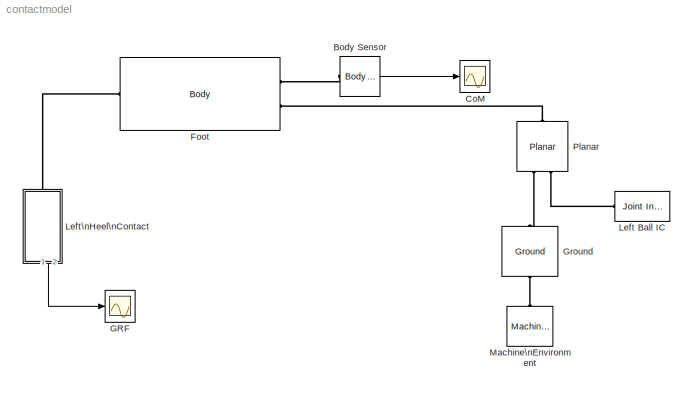
MODEL contactmodel
KIND model
BLOCK [Reference] Body Sensor  REF=mblibv1/Sensors & \nActuators/Body Sensor
  Acceleration = off
  AccelerationUnits = m/s^2
  ActiveIO = on
  Angle = on
  AngleUnits = deg
  ArcAcceleration = off
  ArcAccelerationUnits = deg/s^2
  ArcVelocity = off
  ArcVelocityUnits = deg/s
  ClassName = BodySensor
  CoordPosition = on
  CoordPositionUnits = m
  DialogClass = MechanicalSensorBlock
  Muxed = on
  OutputVector = [1]
  PhysicalDomain = Mechanical
  PortType = blob
  Ports = [0, 1, 0, 0, 0, 1]
  Pose = off
  Quaternion = on
  QuaternionDDT = off
  QuaternionDT = off
  QuaternionUnits = off
  ReferenceFrame = Absolute (World)
  SID = 96
  SourceBlock = mblibv1/Sensors & \nActuators/Body Sensor
  SourceType = Body Sensor
  UpdateFromCAD = off
  Velocity = off
  VelocityUnits = m/s
  Width = 3
BLOCK [Scope] CoM
  Floating = off
  NumInputPorts = 1
  Ports = [1]
  SID = 97
  SaveName = ScopeData1
  ShowLegends = off
BLOCK [Reference] Foot  REF=mblibv1/Bodies/Body
  AttachedToCS = CG
  BodyColor = [1 0 0]
  BodyColorSelMode = MACHINE_DEFAULT
  CG = Left$CG$[0 0 0]$CS1$CS1$m$[0 0 0]$Euler X-Y-Z$deg$WORLD$true$none
  CGPos = [0 0 0]
  CGRot = [0 0 0]
  CS0Pos = []
  CS0Rot = []
  CS10Pos = []
  CS10Rot = []
  CS11Pos = []
  CS11Rot = []
  CS12Pos = []
  CS12Rot = []
  CS13Pos = []
  CS13Rot = []
  CS14Pos = []
  CS14Rot = []
  CS15Pos = []
  CS15Rot = []
  CS16Pos = []
  CS16Rot = []
  CS17Pos = []
  CS17Rot = []
  CS18Pos = []
  CS18Rot = []
  CS19Pos = []
  CS19Rot = []
  CS1Pos = [0 0 0]
  CS1Rot = [0 0 0]
  CS20Pos = []
  CS20Rot = []
  CS2Pos = [0 0 0]
  CS2Rot = [0 0 0]
  CS3Pos = []
  CS3Rot = []
  CS4Pos = []
  CS4Rot = []
  CS5Pos = []
  CS5Rot = []
  CS6Pos = []
  CS6Rot = []
  CS7Pos = []
  CS7Rot = []
  CS8Pos = []
  CS8Rot = []
  CS9Pos = []
  CS9Rot = []
  ClassName = Body
  Density = 1
  DensityUnits = kg/m^3
  DensityUse = false
  DialogClass = MechanicalBodyBlock
  GraphicsMode = MACHINE_DEFAULT
  Inertia = [0 0 0; 0 0 0; 0 0 1]
  InertiaUnits = kg*m^2
  LConnTagsString = CG|CS1
  Mass = 1
  MassUnits = kg
  Ports = [0, 0, 0, 0, 0, 2, 1]
  RConnTagsString = CS2
  SID = 92
  Shape = Cylinder
  ShapeDims = [1 1]
  ShapeUnits = m
  ShapeUse = false
  SourceBlock = mblibv1/Bodies/Body
  SourceType = Body
  UpdateFromCAD = off
  WorkingFrames = Left$CS1$[0 0 0]$ADJOINING$ADJOINING$m$[0 0 0]$Euler X-Y-Z$deg$WORLD$true$none#Right$CS2$[0 0 0]$CS1$CS1$m$[0 0 0]$Euler X-Y-Z$deg$WORLD$true$none
BLOCK [Scope] GRF
  Floating = off
  NumInputPorts = 1
  Ports = [1]
  SID = 95
  ShowLegends = off
  ZoomMode = yonly
BLOCK [Reference] Ground  REF=mblibv1/Bodies/Ground
  ClassName = Ground
  CoordPosition = [0 0 0]
  CoordPositionUnits = m
  DialogClass = GroundBlock
  LeftPortType = env
  MachineId = [1 0]
  ParameterChecksum = [171950116, 4110428380, 191382114, 3598789503]
  PhysicalDomain = Mechanical
  Ports = [0, 0, 0, 0, 0, 1, 1]
  RightPortType = workingframe
  SID = 1
  ShowEnvPort = on
  SourceBlock = mblibv1/Bodies/Ground
  SourceType = Ground
  StateVectorMgrId = 0
  TopologyChecksum = [3411928972, 2060642309, 880269519, 1718383124]
  UpdateFromCAD = off
  UserData = DataTag0
  UserDataPersistent = on
BLOCK [Reference] Left Ball IC  REF=mblibv1/Sensors & \nActuators/Joint Initial Condition
  ClassName = InitialCondition
  DialogClass = InitialConditionBlock
  InitialConditions = P1$true$0$m$rad$1$m/s$rad/s#P2$true$1$m$rad$0$m/s$rad/s#P3$false$0$m$rad$0$m/s$rad/s#R1$false$0$m$rad$0$m/s$rad/s#R2$false$0$m$rad$0$m/s$rad/s#R3$false$0$m$rad$0$m/s$rad/s#S$false$0$m$rad$0$m/s$rad/s
  LeftPortType = blob
  P1PIC = 0
  P1VIC = 1
  P2PIC = 1
  P2VIC = 0
  P3PIC = 0
  P3VIC = 0
  PhysicalDomain = Mechanical
  Ports = [0, 0, 0, 0, 0, 0, 1]
  R1PIC = 0
  R1VIC = 0
  R2PIC = 0
  R2VIC = 0
  R3PIC = 0
  R3VIC = 0
  RightPortType = blob
  SID = 91
  SPIC = 0
  SVIC = 0
  SourceBlock = mblibv1/Sensors & \nActuators/Joint Initial Condition
  SourceType = Joint Initial Condition
  UpdateFromCAD = off
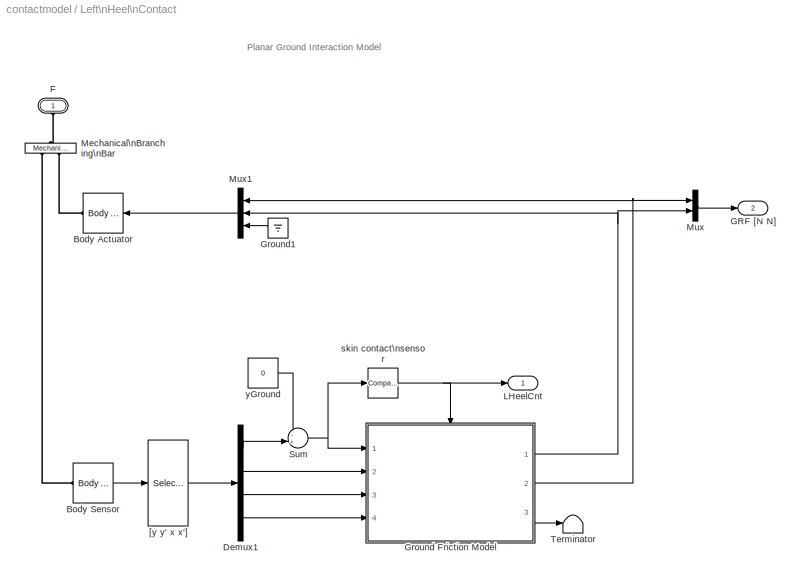
BLOCK [SubSystem] Left\nHeel\nContact
  Ports = [0, 2, 0, 0, 0, 1]
  RequestExecContextInheritance = off
  SID = 2
BLOCK [Reference] Left\nHeel\nContact/Body Actuator  REF=mblibv1/Sensors & \nActuators/Body Actuator
  AccelerationUnits = m/s^2
  ActiveIO = on
  ActuationStyle = Force
  Angle = off
  AngleUnits = deg
  ArcAccelerationUnits = deg/s^2
  ArcVelocityUnits = deg/s
  ClassName = BodyActuatorForceTorque
  CoordPosition = on
  CoordPositionUnits = m
  DialogClass = MechanicalActuatorBlock
  Force = on
  ForceUnits = N
  PhysicalDomain = Mechanical
  PortType = blob
  Ports = [1, 0, 0, 0, 0, 0, 1]
  ReferenceFrame = Absolute (World)
  SID = 3
  SourceBlock = mblibv1/Sensors & \nActuators/Body Actuator
  SourceType = Body Actuator
  Torque = off
  TorqueUnits = N-m
  UpdateFromCAD = off
  VelocityUnits = m/s
  Width = 3
BLOCK [Reference] Left\nHeel\nContact/Body Sensor  REF=mblibv1/Sensors & \nActuators/Body Sensor
  Acceleration = off
  AccelerationUnits = m/s^2
  ActiveIO = on
  Angle = on
  AngleUnits = deg
  ArcAcceleration = off
  ArcAccelerationUnits = deg/s^2
  ArcVelocity = off
  ArcVelocityUnits = deg/s
  ClassName = BodySensor
  CoordPosition = on
  CoordPositionUnits = m
  DialogClass = MechanicalSensorBlock
  Muxed = on
  OutputVector = [ 3 3 ]
  PhysicalDomain = Mechanical
  PortType = blob
  Ports = [0, 1, 0, 0, 0, 1]
  Pose = off
  Quaternion = on
  QuaternionDDT = off
  QuaternionDT = off
  QuaternionUnits = off
  ReferenceFrame = Absolute (World)
  SID = 4
  SourceBlock = mblibv1/Sensors & \nActuators/Body Sensor
  SourceType = Body Sensor
  UpdateFromCAD = off
  Velocity = on
  VelocityUnits = m/s
  Width = 6
BLOCK [Demux] Left\nHeel\nContact/Demux1
  DisplayOption = bar
  Ports = [1, 4]
  SID = 5
BLOCK [PMIOPort] Left\nHeel\nContact/F
  Port = 1
  SID = 87
  Side = Left
BLOCK [Outport] Left\nHeel\nContact/GRF [N N]
  IconDisplay = Port number
  Port = 2
  SID = 89
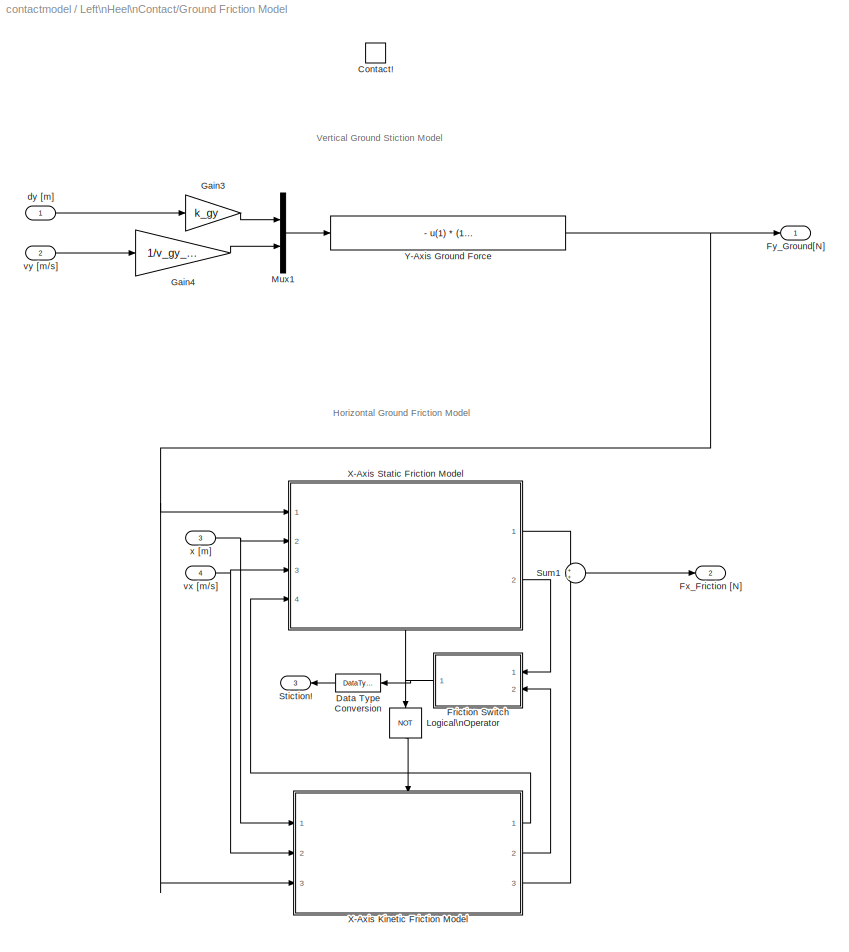
BLOCK [SubSystem] Left\nHeel\nContact/Ground Friction Model
  Ports = [4, 3, 1]
  RequestExecContextInheritance = off
  SID = 6
BLOCK [EnablePort] Left\nHeel\nContact/Ground Friction Model/Contact!
  Ports = []
  SID = 11
  StatesWhenEnabling = reset
BLOCK [DataTypeConversion] Left\nHeel\nContact/Ground Friction Model/Data Type Conversion
  OutDataTypeStr = double
  RndMeth = Floor
  SID = 12
  SaturateOnIntegerOverflow = off
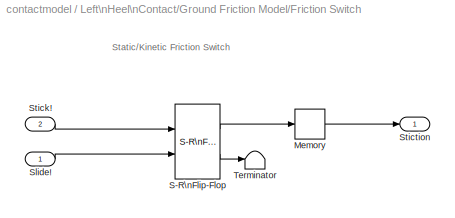
BLOCK [SubSystem] Left\nHeel\nContact/Ground Friction Model/Friction Switch
  Ports = [2, 1]
  RequestExecContextInheritance = off
  SID = 13
BLOCK [Memory] Left\nHeel\nContact/Ground Friction Model/Friction Switch/Memory
  SID = 16
BLOCK [Reference] Left\nHeel\nContact/Ground Friction Model/Friction Switch/S-R\nFlip-Flop  REF=simulink_extras/Flip Flops/S-R\nFlip-Flop
  Ports = [2, 2]
  SID = 17
  SourceBlock = simulink_extras/Flip Flops/S-R\nFlip-Flop
  SourceType = SRFlipFlop
  initial_condition = 1
BLOCK [Inport] Left\nHeel\nContact/Ground Friction Model/Friction Switch/Slide!
  IconDisplay = Port number
  SID = 14
BLOCK [Inport] Left\nHeel\nContact/Ground Friction Model/Friction Switch/Stick!
  IconDisplay = Port number
  Port = 2
  SID = 15
BLOCK [Outport] Left\nHeel\nContact/Ground Friction Model/Friction Switch/Stiction
  IconDisplay = Port number
  SID = 19
BLOCK [Terminator] Left\nHeel\nContact/Ground Friction Model/Friction Switch/Terminator
  SID = 18
BLOCK [Outport] Left\nHeel\nContact/Ground Friction Model/Fx_Friction [N]
  AttributesFormatString = initial = '%<InitialOutput>'<path>'%<OutputWhenDisabled>'
  IconDisplay = Port number
  InitialOutput = 0
  OutputWhenDisabled = reset
  Port = 2
  SID = 74
BLOCK [Outport] Left\nHeel\nContact/Ground Friction Model/Fy_Ground[N]
  AttributesFormatString = initial = '%<InitialOutput>'\\nwhen disabled = '%<OutputWhenDisabled>'
  IconDisplay = Port number
  InitialOutput = 0
  OutputWhenDisabled = reset
  SID = 73
BLOCK [Gain] Left\nHeel\nContact/Ground Friction Model/Gain3
  Gain = k_gy
  OutDataTypeStr = Inherit: Inherit via internal rule
  ParamDataTypeStr = Inherit: Inherit via internal rule
  SID = 21
  SaturateOnIntegerOverflow = off
BLOCK [Gain] Left\nHeel\nContact/Ground Friction Model/Gain4
  Gain = 1/v_gy_max
  OutDataTypeStr = Inherit: Inherit via internal rule
  ParamDataTypeStr = Inherit: Inherit via internal rule
  SID = 22
  SaturateOnIntegerOverflow = off
BLOCK [Logic] Left\nHeel\nContact/Ground Friction Model/Logical\nOperator
  AllPortsSameDT = off
  Operator = NOT
  OutDataTypeStr = boolean
  Ports = [1, 1]
  SID = 23
BLOCK [Mux] Left\nHeel\nContact/Ground Friction Model/Mux1
  DisplayOption = bar
  Inputs = 2
  Ports = [2, 1]
  SID = 24
BLOCK [Outport] Left\nHeel\nContact/Ground Friction Model/Stiction!
  AttributesFormatString = initial = '%<InitialOutput>'<path>'%<OutputWhenDisabled>'
  IconDisplay = Port number
  InitialOutput = 0
  OutputWhenDisabled = reset
  Port = 3
  SID = 75
BLOCK [Sum] Left\nHeel\nContact/Ground Friction Model/Sum1
  IconShape = round
  InputSameDT = off
  OutDataTypeStr = Inherit: Inherit via internal rule
  Ports = [2, 1]
  SID = 25
  SaturateOnIntegerOverflow = off
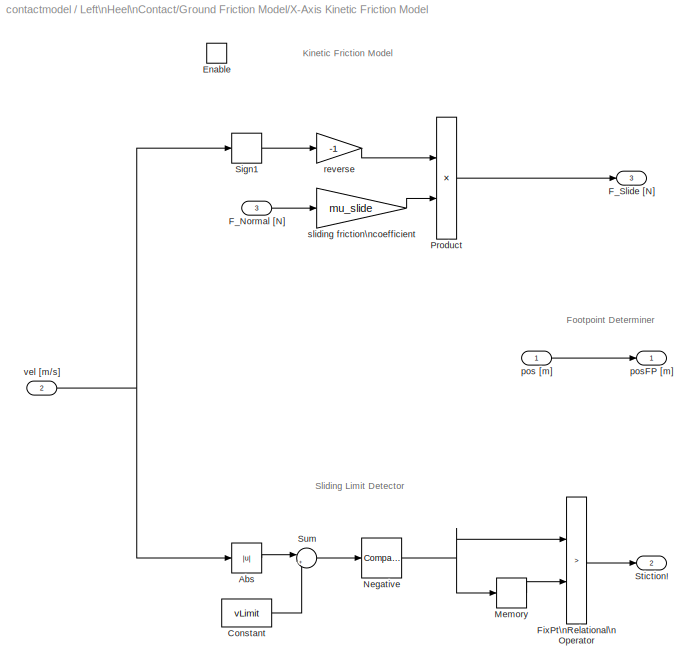
BLOCK [SubSystem] Left\nHeel\nContact/Ground Friction Model/X-Axis Kinetic Friction Model
  Ports = [3, 3, 1]
  RequestExecContextInheritance = off
  SID = 26
BLOCK [Abs] Left\nHeel\nContact/Ground Friction Model/X-Axis Kinetic Friction Model/Abs
  SID = 31
  SaturateOnIntegerOverflow = off
BLOCK [Constant] Left\nHeel\nContact/Ground Friction Model/X-Axis Kinetic Friction Model/Constant
  SID = 32
  Value = vLimit
BLOCK [EnablePort] Left\nHeel\nContact/Ground Friction Model/X-Axis Kinetic Friction Model/Enable
  Ports = []
  SID = 30
  StatesWhenEnabling = reset
  ZeroCross = off
BLOCK [Inport] Left\nHeel\nContact/Ground Friction Model/X-Axis Kinetic Friction Model/F_Normal [N]
  IconDisplay = Port number
  Port = 3
  SID = 29
BLOCK [Outport] Left\nHeel\nContact/Ground Friction Model/X-Axis Kinetic Friction Model/F_Slide [N]
  AttributesFormatString = initial = '%<InitialOutput>'\\nwhen disabled = '%<OutputWhenDisabled>'
  IconDisplay = Port number
  InitialOutput = 0
  OutputWhenDisabled = reset
  Port = 3
  SID = 43
BLOCK [RelationalOperator] Left\nHeel\nContact/Ground Friction Model/X-Axis Kinetic Friction Model/FixPt\nRelational\nOperator
  InputSameDT = off
  Operator = >
  OutDataTypeStr = boolean
  Ports = [2, 1]
  SID = 33
  ZeroCross = off
BLOCK [Memory] Left\nHeel\nContact/Ground Friction Model/X-Axis Kinetic Friction Model/Memory
  SID = 34
BLOCK [Reference] Left\nHeel\nContact/Ground Friction Model/X-Axis Kinetic Friction Model/Negative  REF=simulink/Logic and Bit\nOperations/Compare\nTo Zero
  OutDataTypeStr = boolean
  Ports = [1, 1]
  SID = 35
  SourceBlock = simulink/Logic and Bit\nOperations/Compare\nTo Zero
  SourceType = Compare To Zero
  ZeroCross = on
  relop = <
BLOCK [Product] Left\nHeel\nContact/Ground Friction Model/X-Axis Kinetic Friction Model/Product
  InputSameDT = off
  OutDataTypeStr = Inherit: Inherit via internal rule
  Ports = [2, 1]
  SID = 36
  SaturateOnIntegerOverflow = off
BLOCK [Signum] Left\nHeel\nContact/Ground Friction Model/X-Axis Kinetic Friction Model/Sign1
  SID = 37
BLOCK [Outport] Left\nHeel\nContact/Ground Friction Model/X-Axis Kinetic Friction Model/Stiction!
  AttributesFormatString = initial = '%<InitialOutput>'\\nwhen disabled = '%<OutputWhenDisabled>'
  IconDisplay = Port number
  InitialOutput = 0
  OutputWhenDisabled = reset
  Port = 2
  SID = 42
BLOCK [Sum] Left\nHeel\nContact/Ground Friction Model/X-Axis Kinetic Friction Model/Sum
  IconShape = round
  InputSameDT = off
  Inputs = |+-
  OutDataTypeStr = Inherit: Inherit via internal rule
  Ports = [2, 1]
  SID = 38
  SaturateOnIntegerOverflow = off
BLOCK [Inport] Left\nHeel\nContact/Ground Friction Model/X-Axis Kinetic Friction Model/pos [m]
  IconDisplay = Port number
  SID = 27
BLOCK [Outport] Left\nHeel\nContact/Ground Friction Model/X-Axis Kinetic Friction Model/posFP [m]
  AttributesFormatString = initial = '%<InitialOutput>'\\nwhen disabled = '%<OutputWhenDisabled>'
  IconDisplay = Port number
  InitialOutput = 0
  SID = 41
BLOCK [Gain] Left\nHeel\nContact/Ground Friction Model/X-Axis Kinetic Friction Model/reverse
  Gain = -1
  OutDataTypeStr = Inherit: Inherit via internal rule
  ParamDataTypeStr = Inherit: Inherit via internal rule
  SID = 39
  SaturateOnIntegerOverflow = off
BLOCK [Gain] Left\nHeel\nContact/Ground Friction Model/X-Axis Kinetic Friction Model/sliding friction\ncoefficient
  Gain = mu_slide
  OutDataTypeStr = Inherit: Inherit via internal rule
  ParamDataTypeStr = Inherit: Inherit via internal rule
  SID = 40
  SaturateOnIntegerOverflow = off
BLOCK [Inport] Left\nHeel\nContact/Ground Friction Model/X-Axis Kinetic Friction Model/vel [m//s]
  IconDisplay = Port number
  Port = 2
  SID = 28
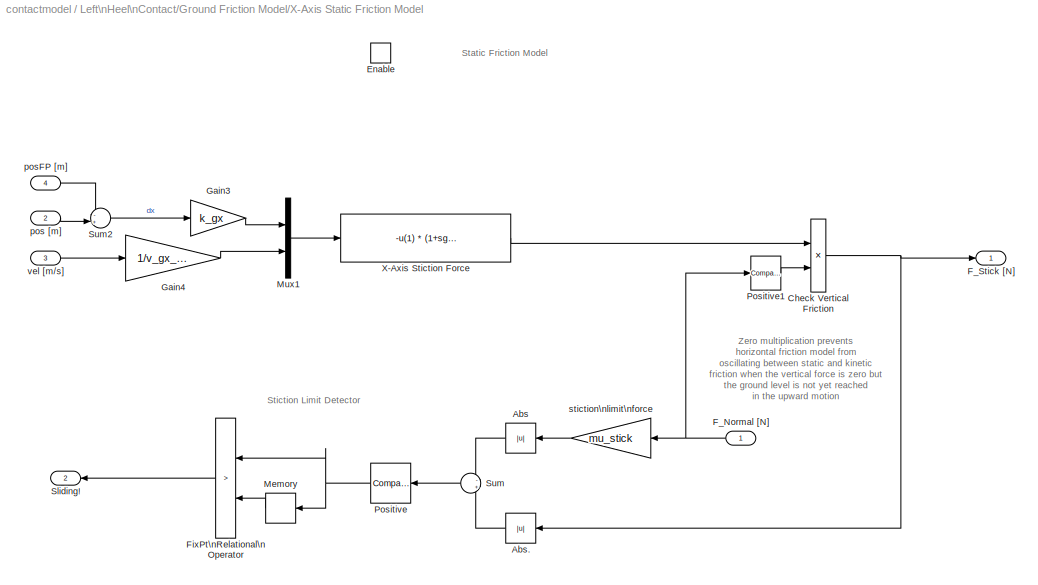
BLOCK [SubSystem] Left\nHeel\nContact/Ground Friction Model/X-Axis Static Friction Model
  Ports = [4, 2, 1]
  RequestExecContextInheritance = off
  SID = 47
BLOCK [Abs] Left\nHeel\nContact/Ground Friction Model/X-Axis Static Friction Model/Abs
  SID = 53
  SaturateOnIntegerOverflow = off
BLOCK [Abs] Left\nHeel\nContact/Ground Friction Model/X-Axis Static Friction Model/Abs.
  SID = 54
  SaturateOnIntegerOverflow = off
BLOCK [Product] Left\nHeel\nContact/Ground Friction Model/X-Axis Static Friction Model/Check Vertical Friction
  InputSameDT = off
  OutDataTypeStr = Inherit: Inherit via internal rule
  Ports = [2, 1]
  SID = 55
  SaturateOnIntegerOverflow = off
BLOCK [EnablePort] Left\nHeel\nContact/Ground Friction Model/X-Axis Static Friction Model/Enable
  Ports = []
  SID = 52
  StatesWhenEnabling = reset
  ZeroCross = off
BLOCK [Inport] Left\nHeel\nContact/Ground Friction Model/X-Axis Static Friction Model/F_Normal [N]
  IconDisplay = Port number
  SID = 48
BLOCK [Outport] Left\nHeel\nContact/Ground Friction Model/X-Axis Static Friction Model/F_Stick [N]
  AttributesFormatString = when disabled: %<OutputWhenDisabled>\\ninitial: %<InitialOutput>
  IconDisplay = Port number
  InitialOutput = 0
  OutputWhenDisabled = reset
  SID = 67
BLOCK [RelationalOperator] Left\nHeel\nContact/Ground Friction Model/X-Axis Static Friction Model/FixPt\nRelational\nOperator
  InputSameDT = off
  Operator = >
  OutDataTypeStr = boolean
  Ports = [2, 1]
  SID = 56
  ZeroCross = off
BLOCK [Gain] Left\nHeel\nContact/Ground Friction Model/X-Axis Static Friction Model/Gain3
  Gain = k_gx
  OutDataTypeStr = Inherit: Inherit via internal rule
  ParamDataTypeStr = Inherit: Inherit via internal rule
  SID = 57
  SaturateOnIntegerOverflow = off
BLOCK [Gain] Left\nHeel\nContact/Ground Friction Model/X-Axis Static Friction Model/Gain4
  Gain = 1/v_gx_max
  OutDataTypeStr = Inherit: Inherit via internal rule
  ParamDataTypeStr = Inherit: Inherit via internal rule
  SID = 58
  SaturateOnIntegerOverflow = off
BLOCK [Memory] Left\nHeel\nContact/Ground Friction Model/X-Axis Static Friction Model/Memory
  SID = 59
BLOCK [Mux] Left\nHeel\nContact/Ground Friction Model/X-Axis Static Friction Model/Mux1
  DisplayOption = bar
  Inputs = 2
  Ports = [2, 1]
  SID = 60
BLOCK [Reference] Left\nHeel\nContact/Ground Friction Model/X-Axis Static Friction Model/Positive  REF=simulink/Logic and Bit\nOperations/Compare\nTo Zero
  OutDataTypeStr = boolean
  Ports = [1, 1]
  SID = 61
  SourceBlock = simulink/Logic and Bit\nOperations/Compare\nTo Zero
  SourceType = Compare To Zero
  ZeroCross = on
  relop = >
BLOCK [Reference] Left\nHeel\nContact/Ground Friction Model/X-Axis Static Friction Model/Positive1  REF=simulink/Logic and Bit\nOperations/Compare\nTo Zero
  OutDataTypeStr = boolean
  Ports = [1, 1]
  SID = 62
  SourceBlock = simulink/Logic and Bit\nOperations/Compare\nTo Zero
  SourceType = Compare To Zero
  ZeroCross = on
  relop = >
BLOCK [Outport] Left\nHeel\nContact/Ground Friction Model/X-Axis Static Friction Model/Sliding!
  AttributesFormatString = when disabled: %<OutputWhenDisabled>\\ninitial: %<InitialOutput>
  IconDisplay = Port number
  InitialOutput = 0
  OutputWhenDisabled = reset
  Port = 2
  SID = 68
BLOCK [Sum] Left\nHeel\nContact/Ground Friction Model/X-Axis Static Friction Model/Sum
  IconShape = round
  InputSameDT = off
  Inputs = -+
  OutDataTypeStr = Inherit: Inherit via internal rule
  Ports = [2, 1]
  SID = 63
  SaturateOnIntegerOverflow = off
BLOCK [Sum] Left\nHeel\nContact/Ground Friction Model/X-Axis Static Friction Model/Sum2
  IconShape = round
  InputSameDT = off
  Inputs = -+|
  OutDataTypeStr = Inherit: Inherit via internal rule
  Ports = [2, 1]
  SID = 64
  SaturateOnIntegerOverflow = off
BLOCK [Fcn] Left\nHeel\nContact/Ground Friction Model/X-Axis Static Friction Model/X-Axis Stiction Force
  Expr = -u(1) * (1+sgn(u(1))*u(2))
  SID = 65
BLOCK [Inport] Left\nHeel\nContact/Ground Friction Model/X-Axis Static Friction Model/pos [m]
  IconDisplay = Port number
  Port = 2
  SID = 49
BLOCK [Inport] Left\nHeel\nContact/Ground Friction Model/X-Axis Static Friction Model/posFP [m]
  IconDisplay = Port number
  Port = 4
  SID = 51
BLOCK [Gain] Left\nHeel\nContact/Ground Friction Model/X-Axis Static Friction Model/stiction\nlimit\nforce
  Gain = mu_stick
  OutDataTypeStr = Inherit: Inherit via internal rule
  ParamDataTypeStr = Inherit: Inherit via internal rule
  SID = 66
  SaturateOnIntegerOverflow = off
BLOCK [Inport] Left\nHeel\nContact/Ground Friction Model/X-Axis Static Friction Model/vel [m//s]
  IconDisplay = Port number
  Port = 3
  SID = 50
BLOCK [Fcn] Left\nHeel\nContact/Ground Friction Model/Y-Axis Ground Force
  Expr = - u(1)  *  (1-u(2)) * (u(2)<1)
  SID = 72
BLOCK [Inport] Left\nHeel\nContact/Ground Friction Model/dy [m]
  IconDisplay = Port number
  SID = 7
BLOCK [Inport] Left\nHeel\nContact/Ground Friction Model/vx [m//s]
  IconDisplay = Port number
  Port = 4
  SID = 10
BLOCK [Inport] Left\nHeel\nContact/Ground Friction Model/vy [m//s]
  IconDisplay = Port number
  Port = 2
  SID = 8
BLOCK [Inport] Left\nHeel\nContact/Ground Friction Model/x [m]
  IconDisplay = Port number
  Port = 3
  SID = 9
BLOCK [Ground] Left\nHeel\nContact/Ground1
  SID = 78
BLOCK [Outport] Left\nHeel\nContact/LHeelCnt
  IconDisplay = Port number
  SID = 88
BLOCK [Reference] Left\nHeel\nContact/Mechanical\nBranching\nBar  REF=mblibv1/Utilities/Mechanical\nBranching\nBar
  ClassName = BranchingBar
  DialogClass = MechanicalBranchingBarBlock
  LConnTagsString = _newl0
  NumSAPorts = 2
  Ports = [0, 0, 0, 0, 0, 1, 2]
  RConnTagsString = SA0|SA1
  SID = 79
  SourceBlock = mblibv1/Utilities/Mechanical\nBranching\nBar
  SourceType = Mechanical Branching Bar
  UpdateFromCAD = off
BLOCK [Mux] Left\nHeel\nContact/Mux
  DisplayOption = bar
  Inputs = 2
  Ports = [2, 1]
  SID = 80
BLOCK [Mux] Left\nHeel\nContact/Mux1
  DisplayOption = bar
  Inputs = 3
  Ports = [3, 1]
  SID = 81
BLOCK [Sum] Left\nHeel\nContact/Sum
  IconShape = round
  InputSameDT = off
  Inputs = -+|
  OutDataTypeStr = Inherit: Inherit via internal rule
  Ports = [2, 1]
  SID = 82
  SaturateOnIntegerOverflow = off
BLOCK [Terminator] Left\nHeel\nContact/Terminator
  SID = 83
BLOCK [Selector] Left\nHeel\nContact/[y y' x x']
  Indices = [2 5 1 4]
  InputPortWidth = 6
  Ports = [1, 1]
  SID = 84
BLOCK [Reference] Left\nHeel\nContact/skin contact\nsensor  REF=simulink/Logic and Bit\nOperations/Compare\nTo Zero
  OutDataTypeStr = boolean
  Ports = [1, 1]
  SID = 85
  SourceBlock = simulink/Logic and Bit\nOperations/Compare\nTo Zero
  SourceType = Compare To Zero
  ZeroCross = on
  relop = <=
BLOCK [Constant] Left\nHeel\nContact/yGround
  SID = 86
  Value = 0
BLOCK [Reference] Machine\nEnvironment  REF=mblibv1/Bodies/Machine\nEnvironment
  AnalysisType = Forward dynamics
  AngularAssemblyTolerance = 1e-3
  AngularAssemblyToleranceUnits = rad
  BodyColorSelMode = Use model default
  BodyVisualizationType = Use model default body geometries
  ClassName = Environment
  ConstraintAbsTolerance = 1e-3
  ConstraintRelTolerance = 1e-3
  ConstraintSolverType = Tolerancing
  DefaultBodyColor = [1 0 0]
  DialogTemplateClass = MECH.MachineEnvironment
  Dimensionality = 2D Only
  Gravity = [0 -9.81 0]
  GravityAsSignal = off
  GravityUnits = m/s^2
  LinearAssemblyTolerance = 1e-3
  LinearAssemblyToleranceUnits = m
  PerturbationSize = 1e-3
  PhysicalDomain = Mechanical
  PortType = env
  Ports = [0, 0, 0, 0, 0, 0, 1]
  RedundancyAnalysisTolerance = 1e-14
  RedundancyAnalysisToleranceType = Automatically select tolerance
  SID = 94
  SourceBlock = mblibv1/Bodies/Machine\nEnvironment
  SourceType = Machine Environment
  StatePerturbationType = Fixed
  SyncWhenCopied = off
  Tag = Factory ground
  UseRobustSingularityHandling = off
  VisualizeMachine = on
BLOCK [Reference] Planar  REF=mblibv1/Joints/Planar
  ClassName = PlanarJoint
  CutJoint = off
  DialogClass = JointBlock
  LConnTagsString = __newl0|SA1
  MarkAsCut = off
  NumSAPorts = 1
  P1Axis = [1 0 0]
  P2Axis = [0 1 0]
  Ports = [0, 0, 0, 0, 0, 2, 1]
  PrimitiveProps = P1$WORLD$[1 0 0]$prismatic#P2$WORLD$[0 1 0]$prismatic#R1$WORLD$[0 0 1]$revolute
  Primitives = prismatic_prismatic_revolute
  R1Axis = [0 0 1]
  RConnTagsString = __newr0
  SID = 93
  SourceBlock = mblibv1/Joints/Planar
  SourceType = Planar
  UpdateFromCAD = off
ANNOTATION Left\nHeel\nContact: Planar Ground Interaction Model
ANNOTATION Left\nHeel\nContact/Ground Friction Model: Horizontal Ground Friction Model
ANNOTATION Left\nHeel\nContact/Ground Friction Model: Vertical Ground Stiction Model
ANNOTATION Left\nHeel\nContact/Ground Friction Model/Friction Switch: Static/Kinetic Friction Switch
ANNOTATION Left\nHeel\nContact/Ground Friction Model/X-Axis Kinetic Friction Model: Footpoint Determiner
ANNOTATION Left\nHeel\nContact/Ground Friction Model/X-Axis Kinetic Friction Model: Kinetic Friction Model
ANNOTATION Left\nHeel\nContact/Ground Friction Model/X-Axis Kinetic Friction Model: Sliding Limit Detector
ANNOTATION Left\nHeel\nContact/Ground Friction Model/X-Axis Static Friction Model: Static Friction Model
ANNOTATION Left\nHeel\nContact/Ground Friction Model/X-Axis Static Friction Model: Stiction Limit Detector
ANNOTATION Left\nHeel\nContact/Ground Friction Model/X-Axis Static Friction Model: Zero multiplication prevents\nhorizontal friction model from\noscillating between static and kinetic\nfriction when the vertical force is zero but \nthe ground level is not yet reached \nin the upward motion
LINE Body Sensor:1 -> CoM:1
LINE Left\nHeel\nContact/Body Sensor:1 -> Left\nHeel\nContact/[y y' x x']:1
LINE Left\nHeel\nContact/Demux1:1 -> Left\nHeel\nContact/Sum:2
LINE Left\nHeel\nContact/Demux1:2 -> Left\nHeel\nContact/Ground Friction Model:2
LINE Left\nHeel\nContact/Demux1:3 -> Left\nHeel\nContact/Ground Friction Model:3
LINE Left\nHeel\nContact/Demux1:4 -> Left\nHeel\nContact/Ground Friction Model:4
LINE Left\nHeel\nContact/Ground Friction Model/Data Type Conversion:1 -> Left\nHeel\nContact/Ground Friction Model/Stiction!:1
LINE Left\nHeel\nContact/Ground Friction Model/Friction Switch/Memory:1 -> Left\nHeel\nContact/Ground Friction Model/Friction Switch/Stiction:1
LINE Left\nHeel\nContact/Ground Friction Model/Friction Switch/S-R\nFlip-Flop:1 -> Left\nHeel\nContact/Ground Friction Model/Friction Switch/Memory:1
LINE Left\nHeel\nContact/Ground Friction Model/Friction Switch/S-R\nFlip-Flop:2 -> Left\nHeel\nContact/Ground Friction Model/Friction Switch/Terminator:1
LINE Left\nHeel\nContact/Ground Friction Model/Friction Switch/Slide!:1 -> Left\nHeel\nContact/Ground Friction Model/Friction Switch/S-R\nFlip-Flop:2
LINE Left\nHeel\nContact/Ground Friction Model/Friction Switch/Stick!:1 -> Left\nHeel\nContact/Ground Friction Model/Friction Switch/S-R\nFlip-Flop:1
NET Left\nHeel\nContact/Ground Friction Model/Friction Switch:1 -> Left\nHeel\nContact/Ground Friction Model/Data Type Conversion:1, Left\nHeel\nContact/Ground Friction Model/Logical\nOperator:1, Left\nHeel\nContact/Ground Friction Model/X-Axis Static Friction Model:enable
LINE Left\nHeel\nContact/Ground Friction Model/Gain3:1 -> Left\nHeel\nContact/Ground Friction Model/Mux1:1
LINE Left\nHeel\nContact/Ground Friction Model/Gain4:1 -> Left\nHeel\nContact/Ground Friction Model/Mux1:2
LINE Left\nHeel\nContact/Ground Friction Model/Logical\nOperator:1 -> Left\nHeel\nContact/Ground Friction Model/X-Axis Kinetic Friction Model:enable
LINE Left\nHeel\nContact/Ground Friction Model/Mux1:1 -> Left\nHeel\nContact/Ground Friction Model/Y-Axis Ground Force:1
LINE Left\nHeel\nContact/Ground Friction Model/Sum1:1 -> Left\nHeel\nContact/Ground Friction Model/Fx_Friction [N]:1
LINE Left\nHeel\nContact/Ground Friction Model/X-Axis Kinetic Friction Model/Abs:1 -> Left\nHeel\nContact/Ground Friction Model/X-Axis Kinetic Friction Model/Sum:1
LINE Left\nHeel\nContact/Ground Friction Model/X-Axis Kinetic Friction Model/Constant:1 -> Left\nHeel\nContact/Ground Friction Model/X-Axis Kinetic Friction Model/Sum:2
LINE Left\nHeel\nContact/Ground Friction Model/X-Axis Kinetic Friction Model/F_Normal [N]:1 -> Left\nHeel\nContact/Ground Friction Model/X-Axis Kinetic Friction Model/sliding friction\ncoefficient:1
LINE Left\nHeel\nContact/Ground Friction Model/X-Axis Kinetic Friction Model/FixPt\nRelational\nOperator:1 -> Left\nHeel\nContact/Ground Friction Model/X-Axis Kinetic Friction Model/Stiction!:1
LINE Left\nHeel\nContact/Ground Friction Model/X-Axis Kinetic Friction Model/Memory:1 -> Left\nHeel\nContact/Ground Friction Model/X-Axis Kinetic Friction Model/FixPt\nRelational\nOperator:2
NET Left\nHeel\nContact/Ground Friction Model/X-Axis Kinetic Friction Model/Negative:1 -> Left\nHeel\nContact/Ground Friction Model/X-Axis Kinetic Friction Model/FixPt\nRelational\nOperator:1, Left\nHeel\nContact/Ground Friction Model/X-Axis Kinetic Friction Model/Memory:1
LINE Left\nHeel\nContact/Ground Friction Model/X-Axis Kinetic Friction Model/Product:1 -> Left\nHeel\nContact/Ground Friction Model/X-Axis Kinetic Friction Model/F_Slide [N]:1
LINE Left\nHeel\nContact/Ground Friction Model/X-Axis Kinetic Friction Model/Sign1:1 -> Left\nHeel\nContact/Ground Friction Model/X-Axis Kinetic Friction Model/reverse:1
LINE Left\nHeel\nContact/Ground Friction Model/X-Axis Kinetic Friction Model/Sum:1 -> Left\nHeel\nContact/Ground Friction Model/X-Axis Kinetic Friction Model/Negative:1
LINE Left\nHeel\nContact/Ground Friction Model/X-Axis Kinetic Friction Model/pos [m]:1 -> Left\nHeel\nContact/Ground Friction Model/X-Axis Kinetic Friction Model/posFP [m]:1
LINE Left\nHeel\nContact/Ground Friction Model/X-Axis Kinetic Friction Model/reverse:1 -> Left\nHeel\nContact/Ground Friction Model/X-Axis Kinetic Friction Model/Product:1
LINE Left\nHeel\nContact/Ground Friction Model/X-Axis Kinetic Friction Model/sliding friction\ncoefficient:1 -> Left\nHeel\nContact/Ground Friction Model/X-Axis Kinetic Friction Model/Product:2
NET Left\nHeel\nContact/Ground Friction Model/X-Axis Kinetic Friction Model/vel [m//s]:1 -> Left\nHeel\nContact/Ground Friction Model/X-Axis Kinetic Friction Model/Abs:1, Left\nHeel\nContact/Ground Friction Model/X-Axis Kinetic Friction Model/Sign1:1
LINE Left\nHeel\nContact/Ground Friction Model/X-Axis Kinetic Friction Model:1 -> Left\nHeel\nContact/Ground Friction Model/X-Axis Static Friction Model:4
LINE Left\nHeel\nContact/Ground Friction Model/X-Axis Kinetic Friction Model:2 -> Left\nHeel\nContact/Ground Friction Model/Friction Switch:2
LINE Left\nHeel\nContact/Ground Friction Model/X-Axis Kinetic Friction Model:3 -> Left\nHeel\nContact/Ground Friction Model/Sum1:2
LINE Left\nHeel\nContact/Ground Friction Model/X-Axis Static Friction Model/Abs.:1 -> Left\nHeel\nContact/Ground Friction Model/X-Axis Static Friction Model/Sum:2
LINE Left\nHeel\nContact/Ground Friction Model/X-Axis Static Friction Model/Abs:1 -> Left\nHeel\nContact/Ground Friction Model/X-Axis Static Friction Model/Sum:1
NET Left\nHeel\nContact/Ground Friction Model/X-Axis Static Friction Model/Check Vertical Friction:1 -> Left\nHeel\nContact/Ground Friction Model/X-Axis Static Friction Model/Abs.:1, Left\nHeel\nContact/Ground Friction Model/X-Axis Static Friction Model/F_Stick [N]:1
NET Left\nHeel\nContact/Ground Friction Model/X-Axis Static Friction Model/F_Normal [N]:1 -> Left\nHeel\nContact/Ground Friction Model/X-Axis Static Friction Model/Positive1:1, Left\nHeel\nContact/Ground Friction Model/X-Axis Static Friction Model/stiction\nlimit\nforce:1
LINE Left\nHeel\nContact/Ground Friction Model/X-Axis Static Friction Model/FixPt\nRelational\nOperator:1 -> Left\nHeel\nContact/Ground Friction Model/X-Axis Static Friction Model/Sliding!:1
LINE Left\nHeel\nContact/Ground Friction Model/X-Axis Static Friction Model/Gain3:1 -> Left\nHeel\nContact/Ground Friction Model/X-Axis Static Friction Model/Mux1:1
LINE Left\nHeel\nContact/Ground Friction Model/X-Axis Static Friction Model/Gain4:1 -> Left\nHeel\nContact/Ground Friction Model/X-Axis Static Friction Model/Mux1:2
LINE Left\nHeel\nContact/Ground Friction Model/X-Axis Static Friction Model/Memory:1 -> Left\nHeel\nContact/Ground Friction Model/X-Axis Static Friction Model/FixPt\nRelational\nOperator:2
LINE Left\nHeel\nContact/Ground Friction Model/X-Axis Static Friction Model/Mux1:1 -> Left\nHeel\nContact/Ground Friction Model/X-Axis Static Friction Model/X-Axis Stiction Force:1
LINE Left\nHeel\nContact/Ground Friction Model/X-Axis Static Friction Model/Positive1:1 -> Left\nHeel\nContact/Ground Friction Model/X-Axis Static Friction Model/Check Vertical Friction:2
NET Left\nHeel\nContact/Ground Friction Model/X-Axis Static Friction Model/Positive:1 -> Left\nHeel\nContact/Ground Friction Model/X-Axis Static Friction Model/FixPt\nRelational\nOperator:1, Left\nHeel\nContact/Ground Friction Model/X-Axis Static Friction Model/Memory:1
LINE Left\nHeel\nContact/Ground Friction Model/X-Axis Static Friction Model/Sum2:1 -> Left\nHeel\nContact/Ground Friction Model/X-Axis Static Friction Model/Gain3:1
LINE Left\nHeel\nContact/Ground Friction Model/X-Axis Static Friction Model/Sum:1 -> Left\nHeel\nContact/Ground Friction Model/X-Axis Static Friction Model/Positive:1
LINE Left\nHeel\nContact/Ground Friction Model/X-Axis Static Friction Model/X-Axis Stiction Force:1 -> Left\nHeel\nContact/Ground Friction Model/X-Axis Static Friction Model/Check Vertical Friction:1
LINE Left\nHeel\nContact/Ground Friction Model/X-Axis Static Friction Model/pos [m]:1 -> Left\nHeel\nContact/Ground Friction Model/X-Axis Static Friction Model/Sum2:2
LINE Left\nHeel\nContact/Ground Friction Model/X-Axis Static Friction Model/posFP [m]:1 -> Left\nHeel\nContact/Ground Friction Model/X-Axis Static Friction Model/Sum2:1
LINE Left\nHeel\nContact/Ground Friction Model/X-Axis Static Friction Model/stiction\nlimit\nforce:1 -> Left\nHeel\nContact/Ground Friction Model/X-Axis Static Friction Model/Abs:1
LINE Left\nHeel\nContact/Ground Friction Model/X-Axis Static Friction Model/vel [m//s]:1 -> Left\nHeel\nContact/Ground Friction Model/X-Axis Static Friction Model/Gain4:1
LINE Left\nHeel\nContact/Ground Friction Model/X-Axis Static Friction Model:1 -> Left\nHeel\nContact/Ground Friction Model/Sum1:1
LINE Left\nHeel\nContact/Ground Friction Model/X-Axis Static Friction Model:2 -> Left\nHeel\nContact/Ground Friction Model/Friction Switch:1
NET Left\nHeel\nContact/Ground Friction Model/Y-Axis Ground Force:1 -> Left\nHeel\nContact/Ground Friction Model/Fy_Ground[N]:1, Left\nHeel\nContact/Ground Friction Model/X-Axis Kinetic Friction Model:3, Left\nHeel\nContact/Ground Friction Model/X-Axis Static Friction Model:1
LINE Left\nHeel\nContact/Ground Friction Model/dy [m]:1 -> Left\nHeel\nContact/Ground Friction Model/Gain3:1
NET Left\nHeel\nContact/Ground Friction Model/vx [m//s]:1 -> Left\nHeel\nContact/Ground Friction Model/X-Axis Kinetic Friction Model:2, Left\nHeel\nContact/Ground Friction Model/X-Axis Static Friction Model:3
LINE Left\nHeel\nContact/Ground Friction Model/vy [m//s]:1 -> Left\nHeel\nContact/Ground Friction Model/Gain4:1
NET Left\nHeel\nContact/Ground Friction Model/x [m]:1 -> Left\nHeel\nContact/Ground Friction Model/X-Axis Kinetic Friction Model:1, Left\nHeel\nContact/Ground Friction Model/X-Axis Static Friction Model:2
NET Left\nHeel\nContact/Ground Friction Model:1 -> Left\nHeel\nContact/Mux1:2, Left\nHeel\nContact/Mux:2
NET Left\nHeel\nContact/Ground Friction Model:2 -> Left\nHeel\nContact/Mux1:1, Left\nHeel\nContact/Mux:1
LINE Left\nHeel\nContact/Ground Friction Model:3 -> Left\nHeel\nContact/Terminator:1
LINE Left\nHeel\nContact/Ground1:1 -> Left\nHeel\nContact/Mux1:3
LINE Left\nHeel\nContact/Mux1:1 -> Left\nHeel\nContact/Body Actuator:1
LINE Left\nHeel\nContact/Mux:1 -> Left\nHeel\nContact/GRF [N N]:1
NET Left\nHeel\nContact/Sum:1 -> Left\nHeel\nContact/Ground Friction Model:1, Left\nHeel\nContact/skin contact\nsensor:1
LINE Left\nHeel\nContact/[y y' x x']:1 -> Left\nHeel\nContact/Demux1:1
NET Left\nHeel\nContact/skin contact\nsensor:1 -> Left\nHeel\nContact/Ground Friction Model:enable, Left\nHeel\nContact/LHeelCnt:1
LINE Left\nHeel\nContact/yGround:1 -> Left\nHeel\nContact/Sum:1
LINE Left\nHeel\nContact:2 -> GRF:1
PLINE Body Sensor:LConn1 -- Foot:LConn1
PLINE Foot:LConn2 -- Planar:RConn1
PLINE Foot:RConn1 -- Left\nHeel\nContact:LConn1
PLINE Ground:LConn1 -- Machine\nEnvironment:RConn1
PLINE Ground:RConn1 -- Planar:LConn1
PLINE Left Ball IC:RConn1 -- Planar:LConn2
PLINE Left\nHeel\nContact/Body Actuator:RConn1 -- Left\nHeel\nContact/Mechanical\nBranching\nBar:RConn2
PLINE Left\nHeel\nContact/Body Sensor:LConn1 -- Left\nHeel\nContact/Mechanical\nBranching\nBar:RConn1
PLINE Left\nHeel\nContact/F:RConn1 -- Left\nHeel\nContact/Mechanical\nBranching\nBar:LConn1
note: NET lines group one-source signal fan-out (src -> all destinations, sorted); 1:1 wires keep LINE
note: 2 file-system paths scrubbed to <path> (not preserved elsewhere — flat text is the only slx artifact)
